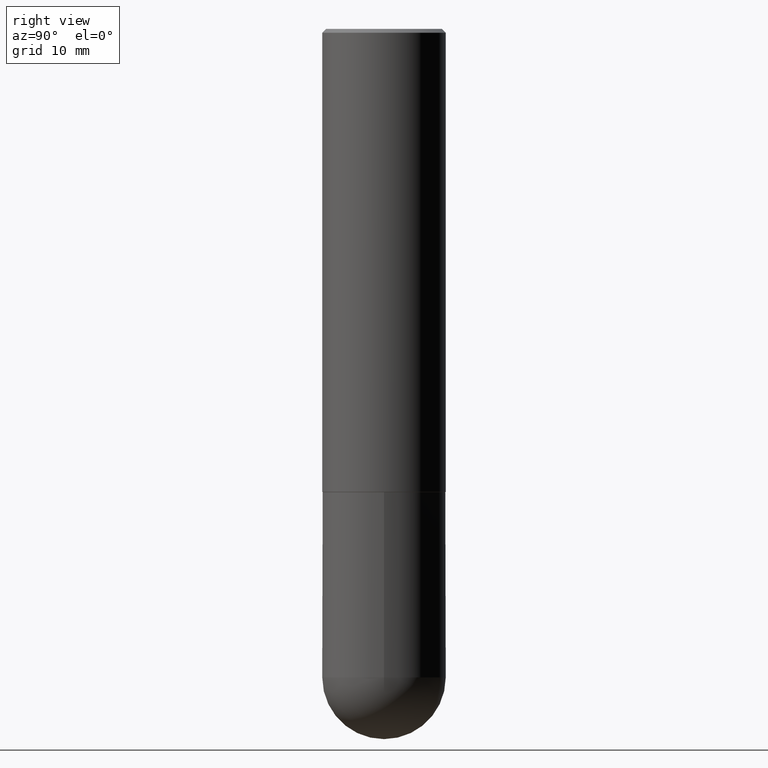
[diagram: clean part render]
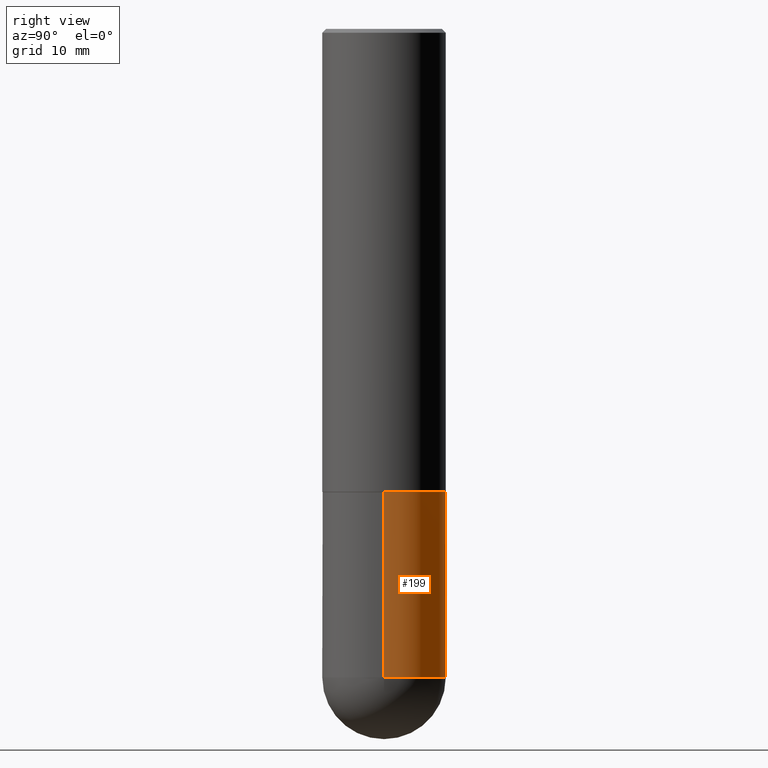
[diagram: same view with one face highlighted and labeled with its STEP entity id]
A machine part, right view. The second image highlights one B-rep face of the part: STEP entity #199.
In plain terms, the highlighted cylindrical surface (partial cylindrical patch) has radius 7.9997 mm, axis along (-0, 0, 1).
Its self-contained STEP definition (entity closure, byte-faithful):
#8 = DIRECTION ( 'NONE',  ( 1.000000000000000000, -6.982962677686269866E-15, 0.000000000000000000 ) ) ;
#16 = CIRCLE ( 'NONE', #145, 0.3149500000000000077 ) ;
#28 = DIRECTION ( 'NONE',  ( -2.445468806185136597E-29, 3.491481338843145583E-15, 1.000000000000000000 ) ) ;
#35 = CARTESIAN_POINT ( 'NONE',  ( 0.000000000000000000, 0.000000000000000000, 0.000000000000000000 ) ) ;
#37 = VECTOR ( 'NONE', #222, 39.37007874015748143 ) ;
#43 = VERTEX_POINT ( 'NONE', #173 ) ;
#57 = VERTEX_POINT ( 'NONE', #125 ) ;
#72 = EDGE_CURVE ( 'NONE', #43, #104, #144, .T. ) ;
#73 = VERTEX_POINT ( 'NONE', #286 ) ;
#89 = CIRCLE ( 'NONE', #332, 0.3149500000000000077 ) ;
#101 = CARTESIAN_POINT ( 'NONE',  ( 8.087287615494557476E-29, -1.154650336162122627E-14, -3.307050000000000267 ) ) ;
#104 = VERTEX_POINT ( 'NONE', #315 ) ;
#118 = DIRECTION ( 'NONE',  ( 1.000000000000000000, -6.982962677686269866E-15, 0.000000000000000000 ) ) ;
#119 = CARTESIAN_POINT ( 'NONE',  ( -0.3149500000000000077, 2.237854346276435590E-15, -1.549218606675782676E-29 ) ) ;
#125 = CARTESIAN_POINT ( 'NONE',  ( 2.199284095337369546E-15, 0.3149499999999882394, -3.307050000000001599 ) ) ;
#144 = CIRCLE ( 'NONE', #390, 0.3149500000000000077 ) ;
#145 = AXIS2_PLACEMENT_3D ( 'NONE', #101, #323, #8 ) ;
#146 = DIRECTION ( 'NONE',  ( 1.000000000000000000, -6.982962677686266711E-15, 0.000000000000000000 ) ) ;
#148 = ORIENTED_EDGE ( 'NONE', *, *, #229, .T. ) ;
#157 = EDGE_CURVE ( 'NONE', #57, #161, #89, .T. ) ;
#161 = VERTEX_POINT ( 'NONE', #384 ) ;
#173 = CARTESIAN_POINT ( 'NONE',  ( 0.3149500000000000077, -1.044686131395256792E-14, -2.362199999999999633 ) ) ;
#174 = DIRECTION ( 'NONE',  ( -2.445468806185136597E-29, 3.491481338843145583E-15, 1.000000000000000000 ) ) ;
#177 = CYLINDRICAL_SURFACE ( 'NONE', #186, 0.3149500000000000077 ) ;
#184 = FACE_OUTER_BOUND ( 'NONE', #290, .T. ) ;
#186 = AXIS2_PLACEMENT_3D ( 'NONE', #35, #28, #387 ) ;
#190 = ORIENTED_EDGE ( 'NONE', *, *, #393, .F. ) ;
#199 = ADVANCED_FACE ( 'NONE', ( #184 ), #177, .T. ) ;
#222 = DIRECTION ( 'NONE',  ( -2.445468806185136877E-29, 3.491481338843145188E-15, 1.000000000000000000 ) ) ;
#229 = EDGE_CURVE ( 'NONE', #73, #57, #16, .T. ) ;
#246 = ORIENTED_EDGE ( 'NONE', *, *, #386, .T. ) ;
#254 = DIRECTION ( 'NONE',  ( -2.445468806185136877E-29, 3.491481338843145188E-15, 1.000000000000000000 ) ) ;
#267 = VECTOR ( 'NONE', #254, 39.37007874015748143 ) ;
#280 = CARTESIAN_POINT ( 'NONE',  ( 5.776686413970529753E-29, -8.247577218615278049E-15, -2.362199999999999633 ) ) ;
#286 = CARTESIAN_POINT ( 'NONE',  ( 0.3149500000000000077, -1.209632438545554361E-14, -3.307050000000000267 ) ) ;
#287 = LINE ( 'NONE', #346, #267 ) ;
#290 = EDGE_LOOP ( 'NONE', ( #349, #246, #392, #190, #148 ) ) ;
#315 = CARTESIAN_POINT ( 'NONE',  ( -0.3149500000000000077, -7.659185943841816172E-15, -2.362199999999999633 ) ) ;
#323 = DIRECTION ( 'NONE',  ( -2.445468806185136597E-29, 3.491481338843145583E-15, 1.000000000000000000 ) ) ;
#332 = AXIS2_PLACEMENT_3D ( 'NONE', #408, #340, #118 ) ;
#340 = DIRECTION ( 'NONE',  ( -2.445468806185136597E-29, 3.491481338843145583E-15, 1.000000000000000000 ) ) ;
#346 = CARTESIAN_POINT ( 'NONE',  ( 0.3149500000000000077, -2.199284095337289871E-15, 1.535751875536930130E-29 ) ) ;
#349 = ORIENTED_EDGE ( 'NONE', *, *, #157, .T. ) ;
#384 = CARTESIAN_POINT ( 'NONE',  ( -0.3149500000000000077, -7.659185943841817750E-15, -3.307050000000000267 ) ) ;
#386 = EDGE_CURVE ( 'NONE', #161, #104, #409, .T. ) ;
#387 = DIRECTION ( 'NONE',  ( 1.000000000000000000, -6.982962677686266711E-15, 4.876176775795936353E-29 ) ) ;
#390 = AXIS2_PLACEMENT_3D ( 'NONE', #280, #174, #146 ) ;
#392 = ORIENTED_EDGE ( 'NONE', *, *, #72, .F. ) ;
#393 = EDGE_CURVE ( 'NONE', #73, #43, #287, .T. ) ;
#408 = CARTESIAN_POINT ( 'NONE',  ( 8.087287615494557476E-29, -1.154650336162122627E-14, -3.307050000000000267 ) ) ;
#409 = LINE ( 'NONE', #119, #37 ) ;